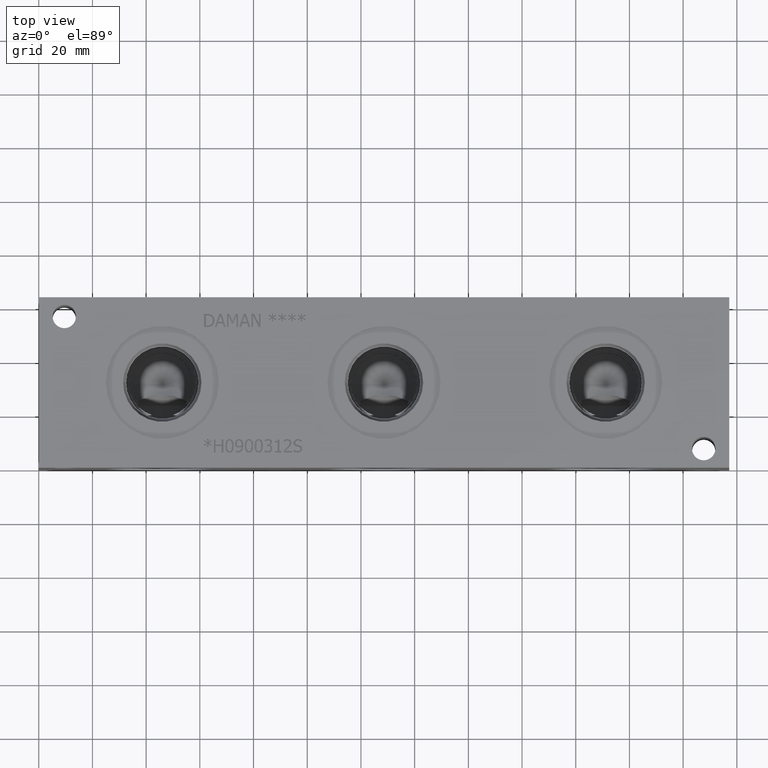
[diagram: clean part render]
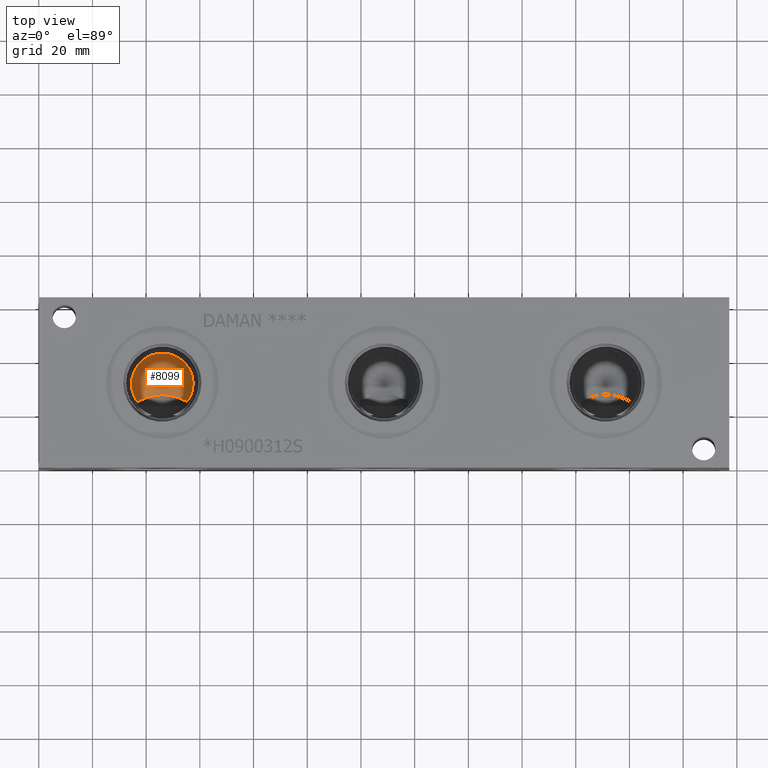
[diagram: same view with one face highlighted and labeled with its STEP entity id]
A machine part, top view. The second image highlights one B-rep face of the part: STEP entity #8099.
In plain terms, the highlighted conical surface has half-angle 60 deg.
Its self-contained STEP definition (entity closure, byte-faithful):
#92=CONICAL_SURFACE('',#8529,5.7531,1.0471975511966);
#199=CIRCLE('',#8530,11.5062);
#200=CIRCLE('',#8531,11.5062);
#536=B_SPLINE_CURVE_WITH_KNOTS('',3,(#13862,#13863,#13864,#13865,#13866,
#13867,#13868,#13869,#13870,#13871,#13872,#13873,#13874,#13875,#13876,#13877,
#13878,#13879),.UNSPECIFIED.,.F.,.F.,(4,2,2,2,2,2,2,2,4),(2.68163182436081,
2.93462061194558,3.35385212793781,3.54508255228912,3.73631297664044,3.92754340099175,
4.11877382534307,4.53800534133529,4.79099412892006),.UNSPECIFIED.);
#1024=FACE_OUTER_BOUND('',#1476,.T.);
#1476=EDGE_LOOP('',(#6948,#6949,#6950,#6951,#6952));
#2240=LINE('',#13980,#2976);
#2976=VECTOR('',#10085,5.7531);
#3696=VERTEX_POINT('',#13854);
#3697=VERTEX_POINT('',#13861);
#3717=VERTEX_POINT('',#13977);
#3718=VERTEX_POINT('',#13979);
#4787=EDGE_CURVE('',#3697,#3696,#536,.T.);
#4818=EDGE_CURVE('',#3696,#3717,#199,.T.);
#4819=EDGE_CURVE('',#3717,#3718,#2240,.T.);
#4820=EDGE_CURVE('',#3717,#3697,#200,.T.);
#6948=ORIENTED_EDGE('',*,*,#4787,.T.);
#6949=ORIENTED_EDGE('',*,*,#4818,.T.);
#6950=ORIENTED_EDGE('',*,*,#4819,.T.);
#6951=ORIENTED_EDGE('',*,*,#4819,.F.);
#6952=ORIENTED_EDGE('',*,*,#4820,.T.);
#8099=ADVANCED_FACE('',(#1024),#92,.F.);
#8529=AXIS2_PLACEMENT_3D('',#13976,#10081,#10082);
#8530=AXIS2_PLACEMENT_3D('',#13978,#10083,#10084);
#8531=AXIS2_PLACEMENT_3D('',#13981,#10086,#10087);
#10081=DIRECTION('center_axis',(0.,0.,1.));
#10082=DIRECTION('ref_axis',(1.,0.,0.));
#10083=DIRECTION('center_axis',(0.,0.,1.));
#10084=DIRECTION('ref_axis',(1.,0.,0.));
#10085=DIRECTION('',(0.866025403784439,1.06057523872491E-16,-0.5));
#10086=DIRECTION('center_axis',(0.,0.,1.));
#10087=DIRECTION('ref_axis',(1.,0.,0.));
#13854=CARTESIAN_POINT('',(55.4403124017999,25.1363198859068,32.63301));
#13861=CARTESIAN_POINT('',(36.6092875982001,25.1363198859068,32.63301));
#13862=CARTESIAN_POINT('Ctrl Pts',(36.6092875982001,25.1363198859068,32.63301));
#13863=CARTESIAN_POINT('Ctrl Pts',(37.3043842118244,25.4625982589317,32.1963372855045));
#13864=CARTESIAN_POINT('Ctrl Pts',(37.9974843705711,25.7786627966808,31.7651048913931));
#13865=CARTESIAN_POINT('Ctrl Pts',(39.8437491979634,26.5716466860896,30.6418730065668));
#13866=CARTESIAN_POINT('Ctrl Pts',(40.9911785464557,27.023916358073,29.9548022272747));
#13867=CARTESIAN_POINT('Ctrl Pts',(42.7694309797674,27.4872868777242,29.0808372861235));
#13868=CARTESIAN_POINT('Ctrl Pts',(43.3993185148849,27.6135734421644,28.8003434508264));
#13869=CARTESIAN_POINT('Ctrl Pts',(44.7068819327898,27.7674416236025,28.3906132429475));
#13870=CARTESIAN_POINT('Ctrl Pts',(45.3873652521623,27.7980660083301,28.2715524865606));
#13871=CARTESIAN_POINT('Ctrl Pts',(46.6622347478377,27.7980660083301,28.2715524865606));
#13872=CARTESIAN_POINT('Ctrl Pts',(47.3427180672102,27.7674416236025,28.3906132429475));
#13873=CARTESIAN_POINT('Ctrl Pts',(48.6502814851151,27.6135734421644,28.8003434508264));
#13874=CARTESIAN_POINT('Ctrl Pts',(49.2801690202326,27.4872868777242,29.0808372861235));
#13875=CARTESIAN_POINT('Ctrl Pts',(51.0584214535443,27.023916358073,29.9548022272747));
#13876=CARTESIAN_POINT('Ctrl Pts',(52.2058508020365,26.5716466860896,30.6418730065668));
#13877=CARTESIAN_POINT('Ctrl Pts',(54.0521156294289,25.7786627966808,31.7651048913931));
#13878=CARTESIAN_POINT('Ctrl Pts',(54.7452157881756,25.4625982589317,32.1963372855045));
#13879=CARTESIAN_POINT('Ctrl Pts',(55.4403124017999,25.1363198859068,32.63301));
#13976=CARTESIAN_POINT('Origin',(46.0248,31.75,29.3114561663252));
#13977=CARTESIAN_POINT('',(34.5186,31.75,32.63301));
#13978=CARTESIAN_POINT('Origin',(46.0248,31.75,32.63301));
#13979=CARTESIAN_POINT('',(46.0248,31.75,25.9899023326503));
#13980=CARTESIAN_POINT('',(40.2717,31.75,29.3114561663252));
#13981=CARTESIAN_POINT('Origin',(46.0248,31.75,32.63301));